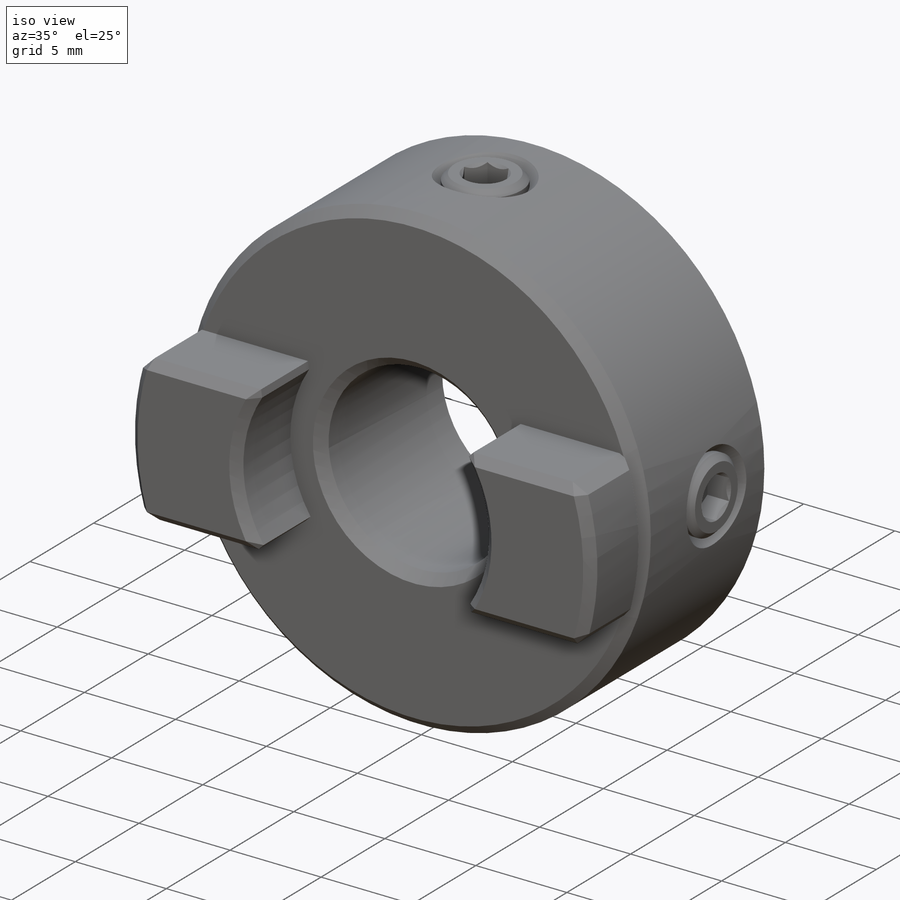
[diagram: iso view]
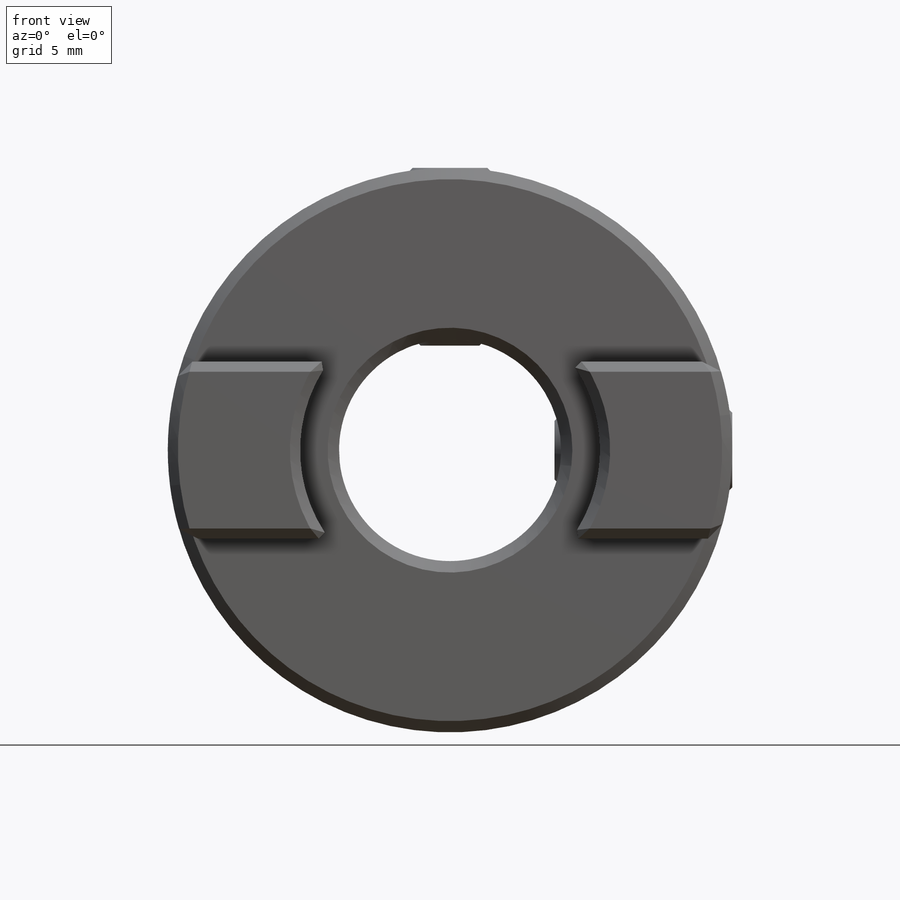
[diagram: front view]
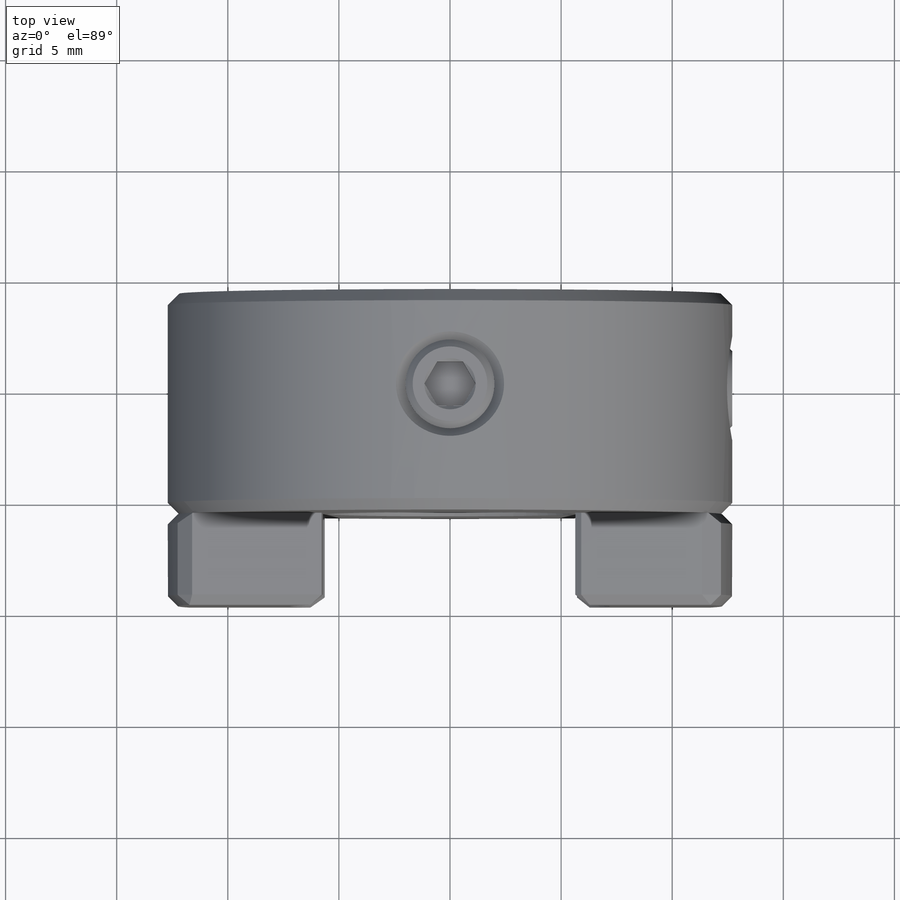
[diagram: top view]
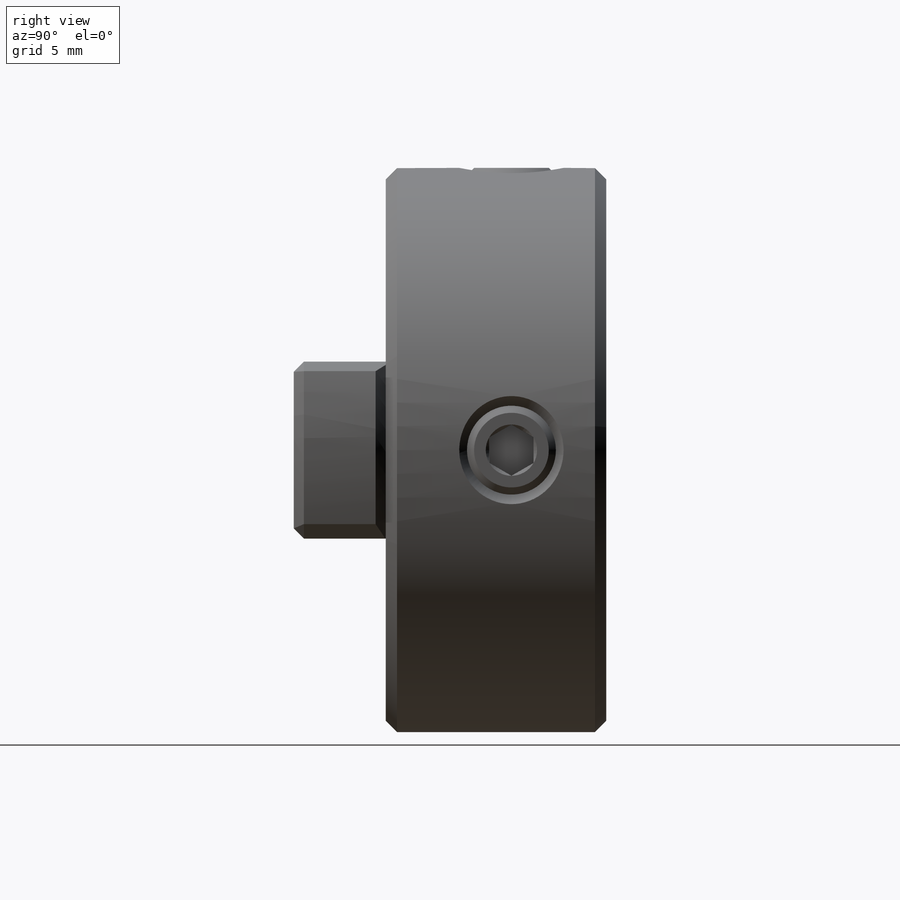
[diagram: right view]
SOLIDWORKS PART (.sldprt)
format: sldprt  version: not decoded by parser v0  size: 510,464 bytes
history: native  units: mm
features: sketch x9, chamfer x6, cut_extrude x4, extrude x3, pattern_circular x3, material x1, plane x1 (+17 scaffold rows collapsed; 3 parser-record rows omitted)
feature tree (47):
  scaffold x17  (default folders/planes/origin — collapsed)
  material  "Material <not specified>"
  sketch  "Sketch3"  dims[c1.OD=~84.534375mm c1.Shaft Dia=25.4mm c1.Spider Thickness=11.1125mm c2.Shaft Dia=10.0mm c2.OD=25.4mm c2.Overall Lg=28.575mm c3.OD=~47.476249mm c3.Bore Depth=~9.921875mm c3.Lug Lg=4.1402mm]
  sketch  "Sketch1"  dims[OD=~84.534375mm Shaft Dia=25.4mm]
  extrude  "Boss-Extrude1"  [1 undecoded]
  chamfer  "Chamfer1"  Distance=0.508mm Angle=45deg
  parser-record x3  (decoder bookkeeping rows leaked as tree rows — omitted from the tree; the rows remain in map.json)
  sketch  "Sketch2"  dims[c1.Spider Inner body Dia=~13.49502mm c1.Spider Leg Thickness=7.9629mm c1.D4=22.987mm c1.D1=~13.272132mm c2.D1=60.0deg c2.D4=~12.265481mm c3.D1=~12.265481mm]
  extrude  "Boss-Extrude2"  [1 undecoded]
  chamfer  "Chamfer5"  Distance=0.4572mm Angle=45deg
  pattern_circular  "CirPattern1"  Count=2 Angle=360deg
  sketch  "Sketch15"
  cut_extrude  "Cut-Extrude5"  [1 undecoded]
  sketch  "Sketch5"  dims[Screw Dia=4.0mm Screw Offset=4.2672mm]
  cut_extrude  "Cut-Extrude2"  [1 undecoded]
  plane  "Plane1"
  sketch  "Sketch6"  dims[D1=0.0mm]
  extrude  "Boss-Extrude3"  Depth=8mm screw length=8mm
  sketch  "Sketch8"  dims[D1=2.0mm]
  cut_extrude  "Cut-Extrude3"  Depth=1.2mm
  sketch  "Sketch9"
  cut_extrude  "Cut-Extrude4"  [1 undecoded]
  chamfer  "Chamfer3"  Distance=0.32mm Angle=45deg
  chamfer  "Chamfer4"  Distance=0.68mm Angle=45deg
  chamfer  "Chamfer6"  Distance=0.508mm Angle=45deg
  pattern_circular  "CirPattern2"  Count=2 Angle=90deg
  pattern_circular  "CirPattern3"  Count=2 Angle=90deg
  chamfer  "Chamfer7"  Distance=0.508mm Angle=45deg
  sketch  "Sketch18"
decode coverage: 17 of 25 modeling features carry decoded parameters
note: ~ marks probable driven/reference dimensions
note: 5 parameter values undecoded
summary: no parameter record found for 5 features
note: suppression state not decoded; provenance and decode notes live in map.json
